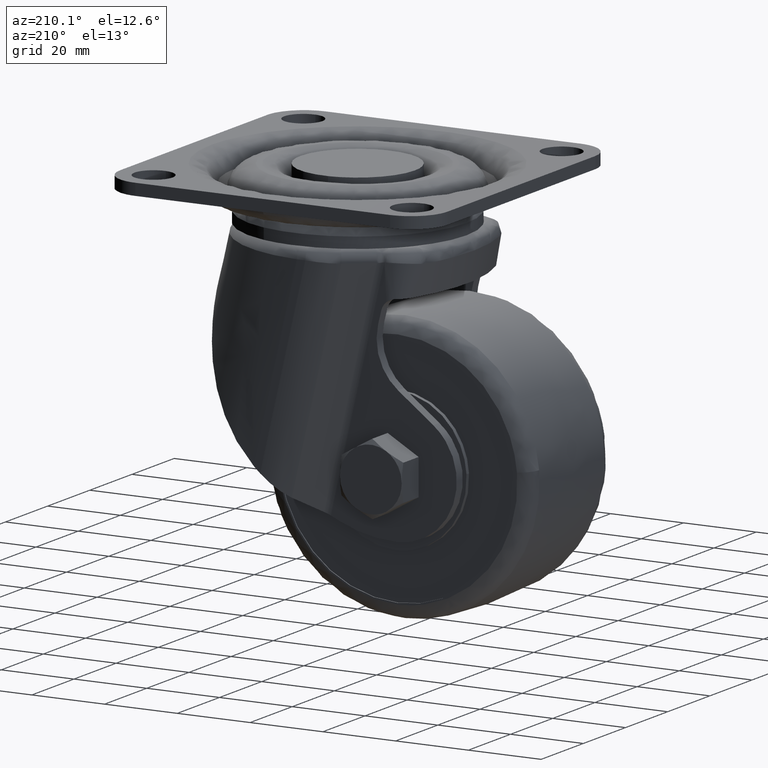
[diagram: clean part render]
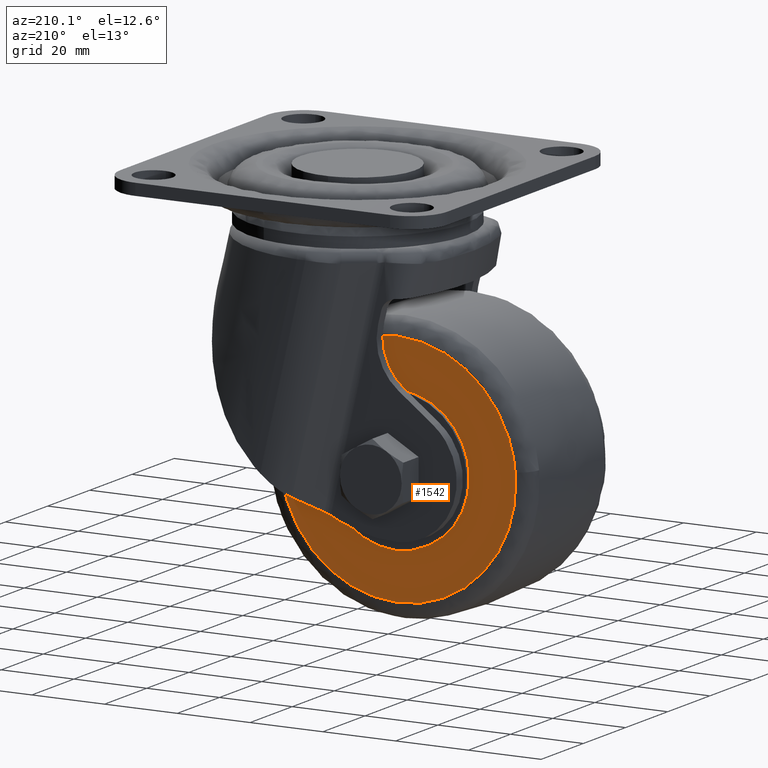
[diagram: same view with one face highlighted and labeled with its STEP entity id]
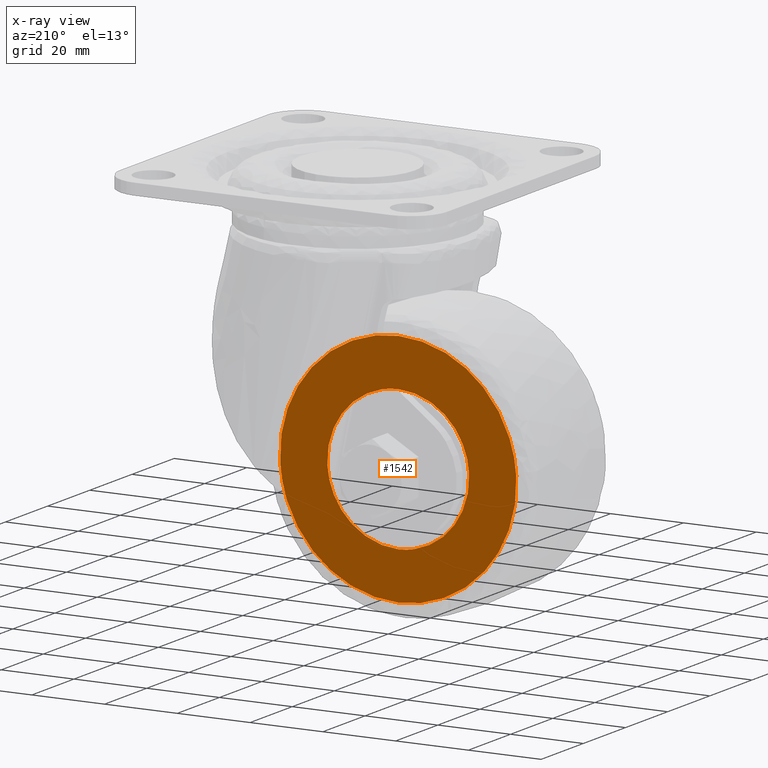
[diagram: x-ray of the same camera — body ghosted, the highlighted face saturated]
A machine part, auxiliary view. The second image highlights one B-rep face of the part: STEP entity #1542.
The next image is the same camera in x-ray: the body ghosted, the highlighted face saturated — about 0% of this face is hidden behind the body in this view.
In plain terms, the highlighted face is a freeform B-spline surface patch.
Its self-contained STEP definition (entity closure, byte-faithful):
#1161=CARTESIAN_POINT('',(-2.536369674674880,18.700000000002738,-69.690417808274361));
#1162=VERTEX_POINT('',#1161);
#1163=CARTESIAN_POINT('',(-22.0,18.699999999999999,-49.0));
#1164=VERTEX_POINT('',#1163);
#1165=CARTESIAN_POINT('',(-2.536369674674881,18.700000000002738,-69.690417808274361));
#1166=CARTESIAN_POINT('',(-2.500000000020876,18.700000000002692,-69.095764487741405));
#1167=CARTESIAN_POINT('',(-2.500000000020549,18.700000000002660,-68.499999999998749));
#1168=CARTESIAN_POINT('',(-2.500000000009962,18.700000000001289,-48.999999999999389));
#1169=CARTESIAN_POINT('',(-22.0,18.699999999999999,-49.0));
#1177=(BOUNDED_CURVE()B_SPLINE_CURVE(2,(#1165,#1166,#1167,#1168,#1169),.UNSPECIFIED.,.F.,.U.)B_SPLINE_CURVE_WITH_KNOTS((3,2,3),(0.239333216782247,0.250000000000000,0.500000000000000),.UNSPECIFIED.)CURVE()GEOMETRIC_REPRESENTATION_ITEM()RATIONAL_B_SPLINE_CURVE((0.976072587202081,0.987503086115868,1.0,0.707106781186548,1.0))REPRESENTATION_ITEM(''));
#1178=EDGE_CURVE('',#1162,#1164,#1177,.T.);
#1187=CARTESIAN_POINT('',(-41.463630325325120,18.700000000002738,-67.309582191725653));
#1188=VERTEX_POINT('',#1187);
#1194=CARTESIAN_POINT('',(-22.0,18.699999999999999,-49.0));
#1195=CARTESIAN_POINT('',(-40.343795415877338,18.700000000001364,-49.000000000000647));
#1196=CARTESIAN_POINT('',(-41.463630325325113,18.700000000002738,-67.309582191725653));
#1204=(BOUNDED_CURVE()B_SPLINE_CURVE(2,(#1194,#1195,#1196),.UNSPECIFIED.,.F.,.U.)B_SPLINE_CURVE_WITH_KNOTS((3,3),(0.500000000000000,0.739333216782247),.UNSPECIFIED.)CURVE()GEOMETRIC_REPRESENTATION_ITEM()RATIONAL_B_SPLINE_CURVE((1.0,0.719603695070679,0.976072587202081))REPRESENTATION_ITEM(''));
#1205=EDGE_CURVE('',#1164,#1188,#1204,.T.);
#1228=CARTESIAN_POINT('',(-22.0,18.699999999999999,-88.000000000000014));
#1229=VERTEX_POINT('',#1228);
#1230=CARTESIAN_POINT('',(-22.0,18.699999999999999,-88.000000000000014));
#1231=CARTESIAN_POINT('',(-3.656204584122659,18.700000000001364,-87.999999999999389));
#1232=CARTESIAN_POINT('',(-2.536369674674881,18.700000000002738,-69.690417808274361));
#1240=(BOUNDED_CURVE()B_SPLINE_CURVE(2,(#1230,#1231,#1232),.UNSPECIFIED.,.F.,.U.)B_SPLINE_CURVE_WITH_KNOTS((3,3),(0.0,0.239333216782247),.UNSPECIFIED.)CURVE()GEOMETRIC_REPRESENTATION_ITEM()RATIONAL_B_SPLINE_CURVE((1.0,0.719603695070679,0.976072587202081))REPRESENTATION_ITEM(''));
#1241=EDGE_CURVE('',#1229,#1162,#1240,.T.);
#1243=CARTESIAN_POINT('',(-41.463630325325113,18.700000000002738,-67.309582191725653));
#1244=CARTESIAN_POINT('',(-41.499999999979124,18.700000000002692,-67.904235512258609));
#1245=CARTESIAN_POINT('',(-41.499999999979451,18.700000000002660,-68.500000000001265));
#1246=CARTESIAN_POINT('',(-41.499999999990038,18.700000000001289,-88.000000000000625));
#1247=CARTESIAN_POINT('',(-22.0,18.699999999999999,-88.000000000000014));
#1255=(BOUNDED_CURVE()B_SPLINE_CURVE(2,(#1243,#1244,#1245,#1246,#1247),.UNSPECIFIED.,.F.,.U.)B_SPLINE_CURVE_WITH_KNOTS((3,2,3),(0.739333216782247,0.750000000000000,1.0),.UNSPECIFIED.)CURVE()GEOMETRIC_REPRESENTATION_ITEM()RATIONAL_B_SPLINE_CURVE((0.976072587202081,0.987503086115868,1.0,0.707106781186548,1.0))REPRESENTATION_ITEM(''));
#1256=EDGE_CURVE('',#1188,#1229,#1255,.T.);
#1465=CARTESIAN_POINT('',(-57.745950087548721,18.699999999999999,-32.753250125982618));
#1466=CARTESIAN_POINT('',(-57.745950087548721,18.699999999999999,-104.246751617453200));
#1467=CARTESIAN_POINT('',(13.745948925258149,18.699999999999999,-32.753250125982618));
#1468=CARTESIAN_POINT('',(13.745948925258149,18.699999999999999,-104.246751617453300));
#1469=B_SPLINE_SURFACE_WITH_KNOTS('',1,1,((#1465,#1467),(#1466,#1468)),.UNSPECIFIED.,.F.,.F.,.U.,(2,2),(2,2),(0.0,71.493501491470639),(0.0,71.491899012806869),.UNSPECIFIED.);
#1470=CARTESIAN_POINT('',(-54.439382967103128,18.700000000002429,-66.515955466093004));
#1471=VERTEX_POINT('',#1470);
#1472=CARTESIAN_POINT('',(-22.0,18.699999999999999,-101.0));
#1473=VERTEX_POINT('',#1472);
#1474=CARTESIAN_POINT('',(-54.439382967103136,18.700000000002426,-66.515955466093004));
#1475=CARTESIAN_POINT('',(-54.499999999983459,18.700000000002397,-67.507051739549283));
#1476=CARTESIAN_POINT('',(-54.499999999983707,18.700000000002358,-68.500000000000995));
#1477=CARTESIAN_POINT('',(-54.499999999992092,18.700000000001147,-101.000000000000480));
#1478=CARTESIAN_POINT('',(-22.0,18.699999999999999,-101.0));
#1486=(BOUNDED_CURVE()B_SPLINE_CURVE(2,(#1474,#1475,#1476,#1477,#1478),.UNSPECIFIED.,.F.,.U.)B_SPLINE_CURVE_WITH_KNOTS((3,2,3),(0.739333137775934,0.750000000000000,1.0),.UNSPECIFIED.)CURVE()GEOMETRIC_REPRESENTATION_ITEM()RATIONAL_B_SPLINE_CURVE((0.976072417876194,0.987502993554215,1.0,0.707106781186547,1.0))REPRESENTATION_ITEM(''));
#1487=EDGE_CURVE('',#1471,#1473,#1486,.T.);
#1488=ORIENTED_EDGE('',*,*,#1487,.F.);
#1489=CARTESIAN_POINT('',(-22.0,18.699999999999999,-36.000000000000007));
#1490=VERTEX_POINT('',#1489);
#1491=CARTESIAN_POINT('',(-22.0,18.699999999999999,-36.000000000000007));
#1492=CARTESIAN_POINT('',(-52.572978334790129,18.700000000001214,-36.000000000000519));
#1493=CARTESIAN_POINT('',(-54.439382967103136,18.700000000002426,-66.515955466093004));
#1501=(BOUNDED_CURVE()B_SPLINE_CURVE(2,(#1491,#1492,#1493),.UNSPECIFIED.,.F.,.U.)B_SPLINE_CURVE_WITH_KNOTS((3,3),(0.500000000000000,0.739333137775934),.UNSPECIFIED.)CURVE()GEOMETRIC_REPRESENTATION_ITEM()RATIONAL_B_SPLINE_CURVE((1.0,0.719603787632332,0.976072417876194))REPRESENTATION_ITEM(''));
#1502=EDGE_CURVE('',#1490,#1471,#1501,.T.);
#1503=ORIENTED_EDGE('',*,*,#1502,.F.);
#1504=CARTESIAN_POINT('',(10.439382967103130,18.700000000002429,-70.484044533906967));
#1505=VERTEX_POINT('',#1504);
#1506=CARTESIAN_POINT('',(10.439382967103132,18.700000000002433,-70.484044533906967));
#1507=CARTESIAN_POINT('',(10.499999999983455,18.700000000002397,-69.492948260450717));
#1508=CARTESIAN_POINT('',(10.499999999983711,18.700000000002358,-68.499999999999005));
#1509=CARTESIAN_POINT('',(10.499999999992099,18.700000000001147,-35.999999999999517));
#1510=CARTESIAN_POINT('',(-22.0,18.699999999999999,-36.000000000000007));
#1518=(BOUNDED_CURVE()B_SPLINE_CURVE(2,(#1506,#1507,#1508,#1509,#1510),.UNSPECIFIED.,.F.,.U.)B_SPLINE_CURVE_WITH_KNOTS((3,2,3),(0.239333137775934,0.250000000000000,0.500000000000000),.UNSPECIFIED.)CURVE()GEOMETRIC_REPRESENTATION_ITEM()RATIONAL_B_SPLINE_CURVE((0.976072417876194,0.987502993554215,1.0,0.707106781186547,1.0))REPRESENTATION_ITEM(''));
#1519=EDGE_CURVE('',#1505,#1490,#1518,.T.);
#1520=ORIENTED_EDGE('',*,*,#1519,.F.);
#1521=CARTESIAN_POINT('',(-22.0,18.699999999999999,-101.0));
#1522=CARTESIAN_POINT('',(8.572978334790143,18.700000000001218,-100.999999999999470));
#1523=CARTESIAN_POINT('',(10.439382967103132,18.700000000002433,-70.484044533906967));
#1531=(BOUNDED_CURVE()B_SPLINE_CURVE(2,(#1521,#1522,#1523),.UNSPECIFIED.,.F.,.U.)B_SPLINE_CURVE_WITH_KNOTS((3,3),(0.0,0.239333137775934),.UNSPECIFIED.)CURVE()GEOMETRIC_REPRESENTATION_ITEM()RATIONAL_B_SPLINE_CURVE((1.0,0.719603787632332,0.976072417876194))REPRESENTATION_ITEM(''));
#1532=EDGE_CURVE('',#1473,#1505,#1531,.T.);
#1533=ORIENTED_EDGE('',*,*,#1532,.F.);
#1534=EDGE_LOOP('',(#1488,#1503,#1520,#1533));
#1535=FACE_OUTER_BOUND('',#1534,.T.);
#1536=ORIENTED_EDGE('',*,*,#1205,.T.);
#1537=ORIENTED_EDGE('',*,*,#1256,.T.);
#1538=ORIENTED_EDGE('',*,*,#1241,.T.);
#1539=ORIENTED_EDGE('',*,*,#1178,.T.);
#1540=EDGE_LOOP('',(#1536,#1537,#1538,#1539));
#1541=FACE_BOUND('',#1540,.T.);
#1542=ADVANCED_FACE('',(#1535,#1541),#1469,.F.);